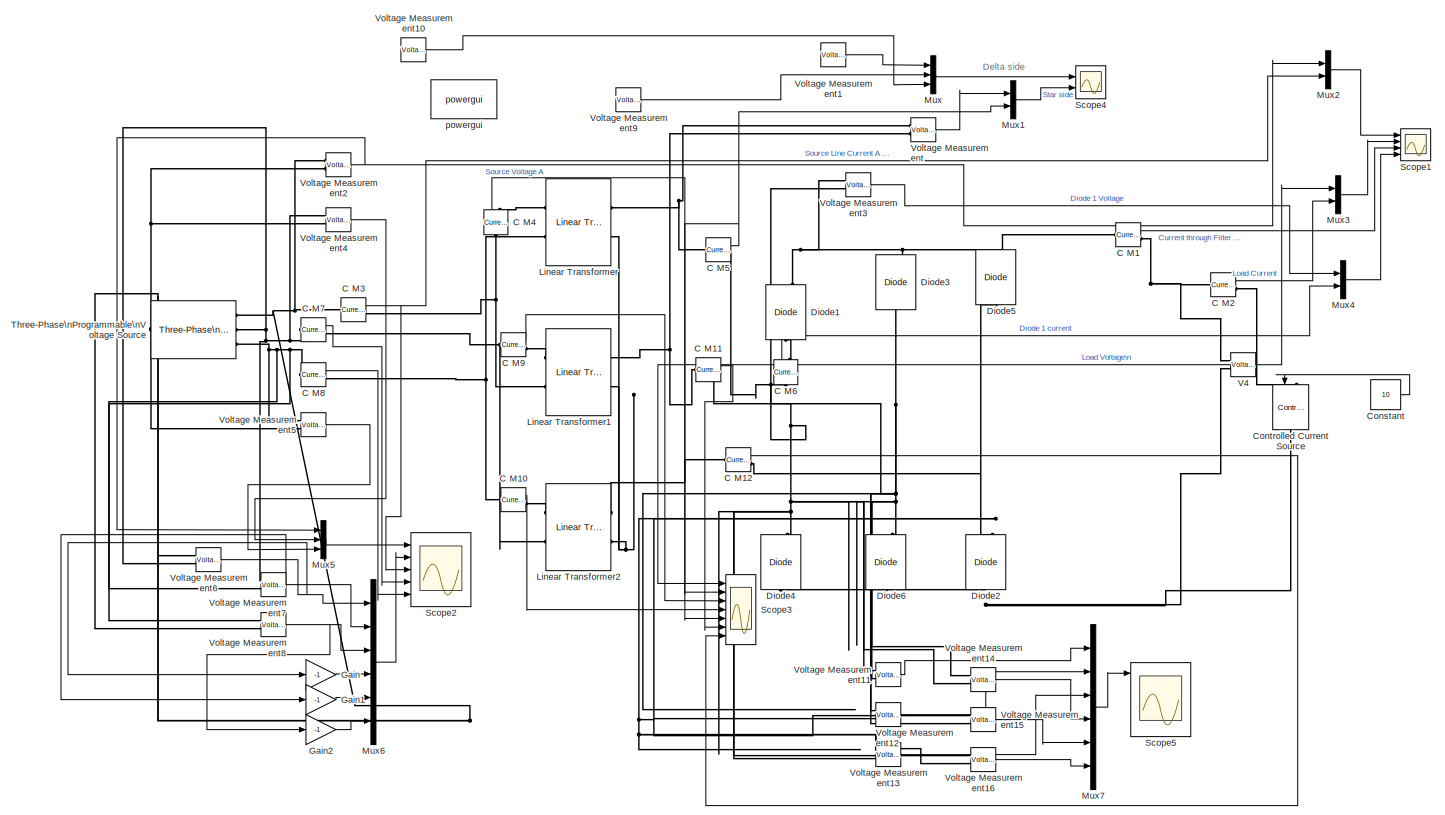
[diagram: root canvas - part 1/1, most of the canvas]
MODEL untitled111
KIND model
BLOCK [Reference] C M1  REF=powerlib/Measurements/Current Measurement
  OutputType = Complex
  PSBequivalent = 0
  PhasorSimulation = off
  Ports = [0, 1, 0, 0, 0, 1, 1]
  SID = 30
  SourceBlock = powerlib/Measurements/Current Measurement
  SourceType = Current Measurement
  UserDataPersistent = on
BLOCK [Reference] C M10  REF=powerlib/Measurements/Current Measurement
  OutputType = Complex
  PSBequivalent = 0
  PhasorSimulation = off
  Ports = [0, 1, 0, 0, 0, 1, 1]
  SID = 69
  SourceBlock = powerlib/Measurements/Current Measurement
  SourceType = Current Measurement
  UserDataPersistent = on
BLOCK [Reference] C M11  REF=powerlib/Measurements/Current Measurement
  OutputType = Complex
  PSBequivalent = 0
  PhasorSimulation = off
  Ports = [0, 1, 0, 0, 0, 1, 1]
  SID = 73
  SourceBlock = powerlib/Measurements/Current Measurement
  SourceType = Current Measurement
  UserDataPersistent = on
BLOCK [Reference] C M12  REF=powerlib/Measurements/Current Measurement
  OutputType = Complex
  PSBequivalent = 0
  PhasorSimulation = off
  Ports = [0, 1, 0, 0, 0, 1, 1]
  SID = 74
  SourceBlock = powerlib/Measurements/Current Measurement
  SourceType = Current Measurement
  UserDataPersistent = on
BLOCK [Reference] C M2  REF=powerlib/Measurements/Current Measurement
  OutputType = Complex
  PSBequivalent = 0
  PhasorSimulation = off
  Ports = [0, 1, 0, 0, 0, 1, 1]
  SID = 31
  SourceBlock = powerlib/Measurements/Current Measurement
  SourceType = Current Measurement
  UserDataPersistent = on
BLOCK [Reference] C M3  REF=powerlib/Measurements/Current Measurement
  OutputType = Complex
  PSBequivalent = 0
  PhasorSimulation = off
  Ports = [0, 1, 0, 0, 0, 1, 1]
  SID = 33
  SourceBlock = powerlib/Measurements/Current Measurement
  SourceType = Current Measurement
  UserDataPersistent = on
BLOCK [Reference] C M4  REF=powerlib/Measurements/Current Measurement
  OutputType = Complex
  PSBequivalent = 0
  PhasorSimulation = off
  Ports = [0, 1, 0, 0, 0, 1, 1]
  SID = 34
  SourceBlock = powerlib/Measurements/Current Measurement
  SourceType = Current Measurement
  UserDataPersistent = on
BLOCK [Reference] C M5  REF=powerlib/Measurements/Current Measurement
  OutputType = Complex
  PSBequivalent = 0
  PhasorSimulation = off
  Ports = [0, 1, 0, 0, 0, 1, 1]
  SID = 35
  SourceBlock = powerlib/Measurements/Current Measurement
  SourceType = Current Measurement
  UserDataPersistent = on
BLOCK [Reference] C M6  REF=powerlib/Measurements/Current Measurement
  OutputType = Complex
  PSBequivalent = 0
  PhasorSimulation = off
  Ports = [0, 1, 0, 0, 0, 1, 1]
  SID = 36
  SourceBlock = powerlib/Measurements/Current Measurement
  SourceType = Current Measurement
  UserDataPersistent = on
BLOCK [Reference] C M7  REF=powerlib/Measurements/Current Measurement
  OutputType = Complex
  PSBequivalent = 0
  PhasorSimulation = off
  Ports = [0, 1, 0, 0, 0, 1, 1]
  SID = 53
  SourceBlock = powerlib/Measurements/Current Measurement
  SourceType = Current Measurement
  UserDataPersistent = on
BLOCK [Reference] C M8  REF=powerlib/Measurements/Current Measurement
  OutputType = Complex
  PSBequivalent = 0
  PhasorSimulation = off
  Ports = [0, 1, 0, 0, 0, 1, 1]
  SID = 54
  SourceBlock = powerlib/Measurements/Current Measurement
  SourceType = Current Measurement
  UserDataPersistent = on
BLOCK [Reference] C M9  REF=powerlib/Measurements/Current Measurement
  OutputType = Complex
  PSBequivalent = 0
  PhasorSimulation = off
  Ports = [0, 1, 0, 0, 0, 1, 1]
  SID = 68
  SourceBlock = powerlib/Measurements/Current Measurement
  SourceType = Current Measurement
  UserDataPersistent = on
BLOCK [Constant] Constant
  SID = 67
  Value = 10
BLOCK [Reference] Controlled Current Source  REF=powerlib/Electrical\nSources/Controlled Current Source
  Amplitude = 10
  Frequency = 0
  Initialize = on
  Measurements = None
  Phase = 0
  Ports = [1, 0, 0, 0, 0, 1, 1]
  SID = 52
  SourceBlock = powerlib/Electrical\nSources/Controlled Current Source
  SourceType = Controlled Current Source
  Source_Type = DC
BLOCK [Reference] Diode1  REF=powerlib/Power\nElectronics/Diode
  Cs = 250e-9
  IC = 0
  Lon = 0
  Measurements = on
  Ports = [0, 1, 0, 0, 0, 1, 1]
  Ron = 0.001
  Rs = 500
  SID = 19
  SourceBlock = powerlib/Power\nElectronics/Diode
  SourceType = Diode
  UseSnubber = off
  Vf = 0.8
BLOCK [Reference] Diode2  REF=powerlib/Power\nElectronics/Diode
  Cs = 250e-9
  IC = 0
  Lon = 0
  Measurements = on
  Ports = [0, 1, 0, 0, 0, 1, 1]
  Ron = 0.001
  Rs = 500
  SID = 20
  SourceBlock = powerlib/Power\nElectronics/Diode
  SourceType = Diode
  UseSnubber = off
  Vf = 0.8
BLOCK [Reference] Diode3  REF=powerlib/Power\nElectronics/Diode
  Cs = 250e-9
  IC = 0
  Lon = 0
  Measurements = on
  Ports = [0, 1, 0, 0, 0, 1, 1]
  Ron = 0.001
  Rs = 500
  SID = 21
  SourceBlock = powerlib/Power\nElectronics/Diode
  SourceType = Diode
  UseSnubber = off
  Vf = 0.8
BLOCK [Reference] Diode4  REF=powerlib/Power\nElectronics/Diode
  Cs = 250e-9
  IC = 0
  Lon = 0
  Measurements = on
  Ports = [0, 1, 0, 0, 0, 1, 1]
  Ron = 0.001
  Rs = 500
  SID = 22
  SourceBlock = powerlib/Power\nElectronics/Diode
  SourceType = Diode
  UseSnubber = off
  Vf = 0.8
BLOCK [Reference] Diode5  REF=powerlib/Power\nElectronics/Diode
  Cs = 250e-9
  IC = 0
  Lon = 0
  Measurements = on
  Ports = [0, 1, 0, 0, 0, 1, 1]
  Ron = 0.001
  Rs = 500
  SID = 23
  SourceBlock = powerlib/Power\nElectronics/Diode
  SourceType = Diode
  UseSnubber = off
  Vf = 0.8
BLOCK [Reference] Diode6  REF=powerlib/Power\nElectronics/Diode
  Cs = 250e-9
  IC = 0
  Lon = 0
  Measurements = on
  Ports = [0, 1, 0, 0, 0, 1, 1]
  Ron = 0.001
  Rs = 500
  SID = 24
  SourceBlock = powerlib/Power\nElectronics/Diode
  SourceType = Diode
  UseSnubber = off
  Vf = 0.8
BLOCK [Gain] Gain
  Gain = -1
  OutDataTypeStr = Inherit: Inherit via internal rule
  ParamDataTypeStr = Inherit: Inherit via internal rule
  SID = 78
  SaturateOnIntegerOverflow = off
BLOCK [Gain] Gain1
  Gain = -1
  OutDataTypeStr = Inherit: Inherit via internal rule
  ParamDataTypeStr = Inherit: Inherit via internal rule
  SID = 79
  SaturateOnIntegerOverflow = off
BLOCK [Gain] Gain2
  Gain = -1
  OutDataTypeStr = Inherit: Inherit via internal rule
  ParamDataTypeStr = Inherit: Inherit via internal rule
  SID = 80
  SaturateOnIntegerOverflow = off
BLOCK [Reference] Linear Transformer  REF=powerlib/Elements/Linear Transformer
  DataType = off
  Measurements = None
  NominalPower = [ 84e3 50 ]
  Ports = [0, 0, 0, 0, 0, 2, 2]
  RmLm = [ 0 000 ]
  SID = 3
  SourceBlock = powerlib/Elements/Linear Transformer
  SourceType = Linear Transformer
  ThreeWindings = off
  UNITS = pu
  winding1 = [ 440  0.00  0.0 ]
  winding2 = [ 254.034  0.00  0.0 ]
  winding3 = [ 315e3 0.002 0.08 ]
BLOCK [Reference] Linear Transformer1  REF=powerlib/Elements/Linear Transformer
  DataType = off
  Measurements = None
  NominalPower = [ 84e3 50 ]
  Ports = [0, 0, 0, 0, 0, 2, 2]
  RmLm = [ 0 0 ]
  SID = 4
  SourceBlock = powerlib/Elements/Linear Transformer
  SourceType = Linear Transformer
  ThreeWindings = off
  UNITS = pu
  winding1 = [ 440  0.00  0.0 ]
  winding2 = [ 254.034  0.00  0.0 ]
  winding3 = [ 315e3 0.002 0.08 ]
BLOCK [Reference] Linear Transformer2  REF=powerlib/Elements/Linear Transformer
  DataType = off
  Measurements = None
  NominalPower = [ 84e3 50 ]
  Ports = [0, 0, 0, 0, 0, 2, 2]
  RmLm = [ 00 00 ]
  SID = 5
  SourceBlock = powerlib/Elements/Linear Transformer
  SourceType = Linear Transformer
  ThreeWindings = off
  UNITS = pu
  winding1 = [ 440  0.00  0.0 ]
  winding2 = [ 254.034  0.00  0.0 ]
  winding3 = [ 315e3 0.002 0.08 ]
BLOCK [Mux] Mux
  DisplayOption = bar
  Inputs = 3
  Ports = [3, 1]
  SID = 6
BLOCK [Mux] Mux1
  DisplayOption = bar
  Inputs = 2
  Ports = [2, 1]
  SID = 40
BLOCK [Mux] Mux2
  DisplayOption = bar
  Inputs = 2
  Ports = [2, 1]
  SID = 41
BLOCK [Mux] Mux3
  DisplayOption = bar
  Inputs = 2
  Ports = [2, 1]
  SID = 42
BLOCK [Mux] Mux4
  DisplayOption = bar
  Inputs = 2
  Ports = [2, 1]
  SID = 43
BLOCK [Mux] Mux5
  DisplayOption = bar
  Inputs = 3
  Ports = [3, 1]
  SID = 58
BLOCK [Mux] Mux6
  DisplayOption = bar
  Inputs = 6
  Ports = [6, 1]
  SID = 62
BLOCK [Mux] Mux7
  DisplayOption = bar
  Inputs = 6
  Ports = [6, 1]
  SID = 88
BLOCK [Scope] Scope1
  DataFormat = StructureWithTime
  Decimation = 3
  Floating = off
  LegendLocations = 0.80744     0.89656     0.12115    0.053097\n0.81339     0.66309     0.08884    0.053097\n0.82622     0.45219     0.14537     0.02999\n0.82231     0.19755    0.098385    0.053097
  LimitDataPoints = off
  NumInputPorts = 4
  Ports = [4]
  SID = 38
  SampleTime = 0
  SaveName = ScopeData1
  SaveToWorkspace = on
  ShowLegends = on
  YMax = 50~5~5~5
  YMin = 0~-5~-5~-5
  ZoomMode = yonly
BLOCK [Scope] Scope2
  DataFormat = StructureWithTime
  Decimation = 3
  Floating = off
  LimitDataPoints = off
  NumInputPorts = 5
  Ports = [5]
  SID = 57
  SampleTime = 0
  SaveName = pp
  SaveToWorkspace = on
  ShowLegends = off
  YMax = 200~200~-0.415926~-1.97419~2.64171
  YMin = -200~-350~-0.459708~-2.18199~2.39011
  ZoomMode = xonly
BLOCK [Scope] Scope3
  DataFormat = StructureWithTime
  Decimation = 3
  Floating = off
  LimitDataPoints = off
  NumInputPorts = 7
  Ports = [7]
  SID = 70
  SampleTime = 0
  SaveName = pp2
  SaveToWorkspace = on
  ShowLegends = off
  YMax = 50~5~5~5~5~5~5
  YMin = 0~-5~-5~-5~-5~-5~-5
BLOCK [Scope] Scope4
  DataFormat = StructureWithTime
  Decimation = 3
  Floating = off
  LimitDataPoints = off
  NumInputPorts = 2
  Ports = [2]
  SID = 7
  SampleTime = 0
  SaveName = pp4
  SaveToWorkspace = on
  ShowLegends = off
  YMax = 50~5
  YMin = 0~-5
  ZoomMode = yonly
BLOCK [Scope] Scope5
  DataFormat = StructureWithTime
  Decimation = 3
  Floating = off
  LimitDataPoints = off
  NumInputPorts = 6
  Ports = [6]
  SID = 87
  SampleTime = 0
  SaveName = pp1
  SaveToWorkspace = on
  ShowLegends = off
  YMax = 200~200~-0.415926~-1.97419~2.64171~5
  YMin = -200~-350~-0.459708~-2.18199~2.39011~-5
  ZoomMode = xonly
BLOCK [Reference] Three-Phase\nProgrammable\nVoltage Source  REF=powerlib/Electrical\nSources/Three-Phase\nProgrammable\nVoltage Source
  Amplitudes = [1 0.8 1.2 1.0]
  BusType = swing
  HarmonicA = [3 0.2 -25 0]
  HarmonicB = [2 0.15 35 2]
  HarmonicGeneration = off
  Ports = [0, 0, 0, 0, 0, 1, 3]
  PositiveSequence = [220  0 50]
  Pref = 0
  Qmax = inf
  Qmin = -inf
  Qref = 0
  SID = 2
  SourceBlock = powerlib/Electrical\nSources/Three-Phase\nProgrammable\nVoltage Source
  SourceType = Three-Phase Programmable Voltage Source
  TimeValues = [0 0.1 0.15 0.2]
  Timing = [0.05  3]
  VariationEntity = None
  VariationFrequency = 2
  VariationMagnitude = 0.3
  VariationPhaseA = off
  VariationRate = 10
  VariationStep = 0.5
  VariationTiming = [1 2]
  VariationType = Table of time-amplitude pairs
  VariationTypeAlt = Step
BLOCK [Reference] V4  REF=powerlib/Measurements/Voltage Measurement
  OutputType = Complex
  PSBequivalent = 0
  PhasorSimulation = off
  Ports = [0, 1, 0, 0, 0, 2]
  SID = 29
  SourceBlock = powerlib/Measurements/Voltage Measurement
  SourceType = Voltage Measurement
  UserDataPersistent = on
BLOCK [Reference] Voltage Measurement  REF=powerlib/Measurements/Voltage Measurement
  OutputType = Complex
  PSBequivalent = 0
  PhasorSimulation = off
  Ports = [0, 1, 0, 0, 0, 2]
  SID = 8
  SourceBlock = powerlib/Measurements/Voltage Measurement
  SourceType = Voltage Measurement
  UserDataPersistent = on
BLOCK [Reference] Voltage Measurement1  REF=powerlib/Measurements/Voltage Measurement
  OutputType = Complex
  PSBequivalent = 0
  PhasorSimulation = off
  Ports = [0, 1, 0, 0, 0, 2]
  SID = 9
  SourceBlock = powerlib/Measurements/Voltage Measurement
  SourceType = Voltage Measurement
  UserDataPersistent = on
BLOCK [Reference] Voltage Measurement10  REF=powerlib/Measurements/Voltage Measurement
  OutputType = Complex
  PSBequivalent = 0
  PhasorSimulation = off
  Ports = [0, 1, 0, 0, 0, 2]
  SID = 77
  SourceBlock = powerlib/Measurements/Voltage Measurement
  SourceType = Voltage Measurement
  UserDataPersistent = on
BLOCK [Reference] Voltage Measurement11  REF=powerlib/Measurements/Voltage Measurement
  OutputType = Complex
  PSBequivalent = 0
  PhasorSimulation = off
  Ports = [0, 1, 0, 0, 0, 2]
  SID = 81
  SourceBlock = powerlib/Measurements/Voltage Measurement
  SourceType = Voltage Measurement
  UserDataPersistent = on
BLOCK [Reference] Voltage Measurement12  REF=powerlib/Measurements/Voltage Measurement
  OutputType = Complex
  PSBequivalent = 0
  PhasorSimulation = off
  Ports = [0, 1, 0, 0, 0, 2]
  SID = 82
  SourceBlock = powerlib/Measurements/Voltage Measurement
  SourceType = Voltage Measurement
  UserDataPersistent = on
BLOCK [Reference] Voltage Measurement13  REF=powerlib/Measurements/Voltage Measurement
  OutputType = Complex
  PSBequivalent = 0
  PhasorSimulation = off
  Ports = [0, 1, 0, 0, 0, 2]
  SID = 83
  SourceBlock = powerlib/Measurements/Voltage Measurement
  SourceType = Voltage Measurement
  UserDataPersistent = on
BLOCK [Reference] Voltage Measurement14  REF=powerlib/Measurements/Voltage Measurement
  OutputType = Complex
  PSBequivalent = 0
  PhasorSimulation = off
  Ports = [0, 1, 0, 0, 0, 2]
  SID = 84
  SourceBlock = powerlib/Measurements/Voltage Measurement
  SourceType = Voltage Measurement
  UserDataPersistent = on
BLOCK [Reference] Voltage Measurement15  REF=powerlib/Measurements/Voltage Measurement
  OutputType = Complex
  PSBequivalent = 0
  PhasorSimulation = off
  Ports = [0, 1, 0, 0, 0, 2]
  SID = 85
  SourceBlock = powerlib/Measurements/Voltage Measurement
  SourceType = Voltage Measurement
  UserDataPersistent = on
BLOCK [Reference] Voltage Measurement16  REF=powerlib/Measurements/Voltage Measurement
  OutputType = Complex
  PSBequivalent = 0
  PhasorSimulation = off
  Ports = [0, 1, 0, 0, 0, 2]
  SID = 86
  SourceBlock = powerlib/Measurements/Voltage Measurement
  SourceType = Voltage Measurement
  UserDataPersistent = on
BLOCK [Reference] Voltage Measurement2  REF=powerlib/Measurements/Voltage Measurement
  OutputType = Complex
  PSBequivalent = 0
  PhasorSimulation = off
  Ports = [0, 1, 0, 0, 0, 2]
  SID = 32
  SourceBlock = powerlib/Measurements/Voltage Measurement
  SourceType = Voltage Measurement
  UserDataPersistent = on
BLOCK [Reference] Voltage Measurement3  REF=powerlib/Measurements/Voltage Measurement
  OutputType = Complex
  PSBequivalent = 0
  PhasorSimulation = off
  Ports = [0, 1, 0, 0, 0, 2]
  SID = 37
  SourceBlock = powerlib/Measurements/Voltage Measurement
  SourceType = Voltage Measurement
  UserDataPersistent = on
BLOCK [Reference] Voltage Measurement4  REF=powerlib/Measurements/Voltage Measurement
  OutputType = Complex
  PSBequivalent = 0
  PhasorSimulation = off
  Ports = [0, 1, 0, 0, 0, 2]
  SID = 55
  SourceBlock = powerlib/Measurements/Voltage Measurement
  SourceType = Voltage Measurement
  UserDataPersistent = on
BLOCK [Reference] Voltage Measurement5  REF=powerlib/Measurements/Voltage Measurement
  OutputType = Complex
  PSBequivalent = 0
  PhasorSimulation = off
  Ports = [0, 1, 0, 0, 0, 2]
  SID = 56
  SourceBlock = powerlib/Measurements/Voltage Measurement
  SourceType = Voltage Measurement
  UserDataPersistent = on
BLOCK [Reference] Voltage Measurement6  REF=powerlib/Measurements/Voltage Measurement
  OutputType = Complex
  PSBequivalent = 0
  PhasorSimulation = off
  Ports = [0, 1, 0, 0, 0, 2]
  SID = 59
  SourceBlock = powerlib/Measurements/Voltage Measurement
  SourceType = Voltage Measurement
  UserDataPersistent = on
BLOCK [Reference] Voltage Measurement7  REF=powerlib/Measurements/Voltage Measurement
  OutputType = Complex
  PSBequivalent = 0
  PhasorSimulation = off
  Ports = [0, 1, 0, 0, 0, 2]
  SID = 60
  SourceBlock = powerlib/Measurements/Voltage Measurement
  SourceType = Voltage Measurement
  UserDataPersistent = on
BLOCK [Reference] Voltage Measurement8  REF=powerlib/Measurements/Voltage Measurement
  OutputType = Complex
  PSBequivalent = 0
  PhasorSimulation = off
  Ports = [0, 1, 0, 0, 0, 2]
  SID = 61
  SourceBlock = powerlib/Measurements/Voltage Measurement
  SourceType = Voltage Measurement
  UserDataPersistent = on
BLOCK [Reference] Voltage Measurement9  REF=powerlib/Measurements/Voltage Measurement
  OutputType = Complex
  PSBequivalent = 0
  PhasorSimulation = off
  Ports = [0, 1, 0, 0, 0, 2]
  SID = 76
  SourceBlock = powerlib/Measurements/Voltage Measurement
  SourceType = Voltage Measurement
  UserDataPersistent = on
BLOCK [Reference] powergui  REF=powerlib/powergui
  DisableRonSwitches = off
  DisableSnubberDevices = off
  DisableVfSwitches = off
  DisplayEquations = off
  DisplayStyle = 1
  EnableUseOfTLC = off
  ErrMax = 1e-4
  Frange = [0:2:500]
  FreqAxis = on
  FunctionMessages = off
  HookPort = off
  Interpol = off
  Iterations = 50
  MaxFrequency = 1000
  Pbase = 100e6
  Ports = []
  Priority = 1
  ResistiveCurrentMeasurement = off
  RestoreLinks = warning
  RmsSteady = 1
  SID = 39
  SPID = off
  SampleTime = 10e-6
  ShowGrid = off
  SolverType = Tustin
  SourceBlock = powerlib/powergui
  SourceType = PSB option menu block
  StartTime = 0.1
  SwTol = 0
  Ts = 0
  UnitsV = kV
  UnitsW = MW
  UserData = DataTag0
  UserDataPersistent = on
  Xlog = on
  Ylog = off
  ZoomFFT = on
  cycles = 1
  display = off
  echomessages = off
  frequency = 60
  frequencyindice = 50
  frequencyindicesteady = 1
  fundamental = 50
  methode = off
  save = off
  structure = ScopeData1
  variable = ZData
  x0status = blocks
ANNOTATION (root): Delta side
LINE C M10:1 -> Scope3:4
LINE C M11:1 -> Scope3:6
LINE C M12:1 -> Scope3:7
LINE C M1:1 -> Scope1:3
LINE C M2:1 -> Mux3:2
NET C M3:1 -> Mux2:2, Scope2:3
LINE C M4:1 -> Scope3:2
NET C M5:1 -> Mux1:2, Scope3:5
LINE C M6:1 -> Mux4:2
LINE C M7:1 -> Scope2:4
LINE C M8:1 -> Scope2:5
LINE C M9:1 -> Scope3:3
LINE Constant:1 -> Controlled Current Source:1
LINE Gain1:1 -> Mux6:5
LINE Gain2:1 -> Mux6:6
LINE Gain:1 -> Mux6:4
LINE Mux1:1 -> Scope4:2
LINE Mux2:1 -> Scope1:1
LINE Mux3:1 -> Scope1:2
LINE Mux4:1 -> Scope1:4
LINE Mux5:1 -> Scope2:1
LINE Mux6:1 -> Scope2:2
LINE Mux7:1 -> Scope5:1
LINE Mux:1 -> Scope4:1
NET V4:1 -> Mux3:1, Scope3:1
LINE Voltage Measurement10:1 -> Mux:3
LINE Voltage Measurement11:1 -> Mux7:1
LINE Voltage Measurement12:1 -> Mux7:2
LINE Voltage Measurement13:1 -> Mux7:3
LINE Voltage Measurement14:1 -> Mux7:4
LINE Voltage Measurement15:1 -> Mux7:5
LINE Voltage Measurement16:1 -> Mux7:6
LINE Voltage Measurement1:1 -> Mux:1
NET Voltage Measurement2:1 -> Mux2:1, Mux5:1
LINE Voltage Measurement3:1 -> Mux4:1
LINE Voltage Measurement4:1 -> Mux5:2
LINE Voltage Measurement5:1 -> Mux5:3
NET Voltage Measurement6:1 -> Gain:1, Mux6:1
NET Voltage Measurement7:1 -> Gain1:1, Mux6:2
NET Voltage Measurement8:1 -> Gain2:1, Mux6:3
LINE Voltage Measurement9:1 -> Mux:2
LINE Voltage Measurement:1 -> Mux1:1
PNET net1: C M10:LConn1 -- C M8:RConn1 -- Linear Transformer:LConn2
PLINE C M10:RConn1 -- Linear Transformer2:LConn1
PNET net2: C M11:LConn1 -- Linear Transformer1:RConn1 -- Voltage Measurement:LConn2
PNET net3: C M11:RConn1 -- Diode3:LConn1 -- Diode6:RConn1 -- Voltage Measurement11:LConn2 -- Voltage Measurement12:LConn1 -- Voltage Measurement14:LConn1 -- Voltage Measurement15:LConn2
PLINE C M12:LConn1 -- Linear Transformer2:RConn1
PNET net4: C M12:RConn1 -- Diode2:RConn1 -- Diode5:LConn1 -- Voltage Measurement12:LConn2 -- Voltage Measurement13:LConn1 -- Voltage Measurement15:LConn1 -- Voltage Measurement16:LConn2
PNET net5: C M1:LConn1 -- Diode1:RConn1 -- Diode3:RConn1 -- Diode5:RConn1 -- Voltage Measurement3:LConn1
PNET net6: C M1:RConn1 -- C M2:LConn1 -- V4:LConn1
PLINE C M2:RConn1 -- Controlled Current Source:LConn1
PNET net7: C M3:LConn1 -- Three-Phase\nProgrammable\nVoltage Source:RConn1 -- Voltage Measurement2:LConn1 -- Voltage Measurement6:LConn1 -- Voltage Measurement8:LConn2
PNET net8: C M3:RConn1 -- C M4:LConn1 -- Linear Transformer1:LConn2
PLINE C M4:RConn1 -- Linear Transformer:LConn1
PNET net9: C M5:LConn1 -- Linear Transformer:RConn1 -- Voltage Measurement:LConn1
PNET net10: C M5:RConn1 -- C M6:LConn1 -- Diode4:RConn1 -- Voltage Measurement11:LConn1 -- Voltage Measurement13:LConn2 -- Voltage Measurement14:LConn2 -- Voltage Measurement16:LConn1 -- Voltage Measurement3:LConn2
PLINE C M6:RConn1 -- Diode1:LConn1
PNET net11: C M7:LConn1 -- Three-Phase\nProgrammable\nVoltage Source:RConn2 -- Voltage Measurement4:LConn1 -- Voltage Measurement6:LConn2 -- Voltage Measurement7:LConn1
PNET net12: C M7:RConn1 -- C M9:LConn1 -- Linear Transformer2:LConn2
PNET net13: C M8:LConn1 -- Three-Phase\nProgrammable\nVoltage Source:RConn3 -- Voltage Measurement5:LConn1 -- Voltage Measurement7:LConn2 -- Voltage Measurement8:LConn1
PLINE C M9:RConn1 -- Linear Transformer1:LConn1
PNET net14: Controlled Current Source:RConn1 -- Diode2:LConn1 -- Diode4:LConn1 -- Diode6:LConn1 -- V4:LConn2
PNET net15: Linear Transformer1:RConn2 -- Linear Transformer2:RConn2 -- Linear Transformer:RConn2
PNET net16: Three-Phase\nProgrammable\nVoltage Source:LConn1 -- Voltage Measurement2:LConn2 -- Voltage Measurement4:LConn2 -- Voltage Measurement5:LConn2
note: NET lines group one-source signal fan-out (src -> all destinations, sorted); 1:1 wires keep LINE; PNET lines group multi-terminal physical nets as a canonical sorted terminal list (undirected conserving connections); 2-terminal nets keep the pairwise PLINE form
